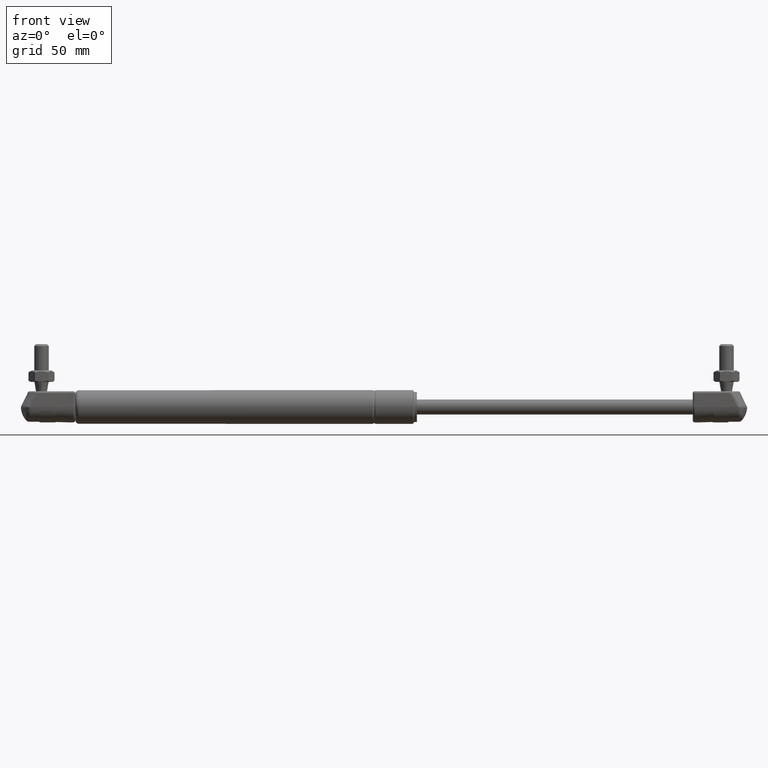
[diagram: clean part render]
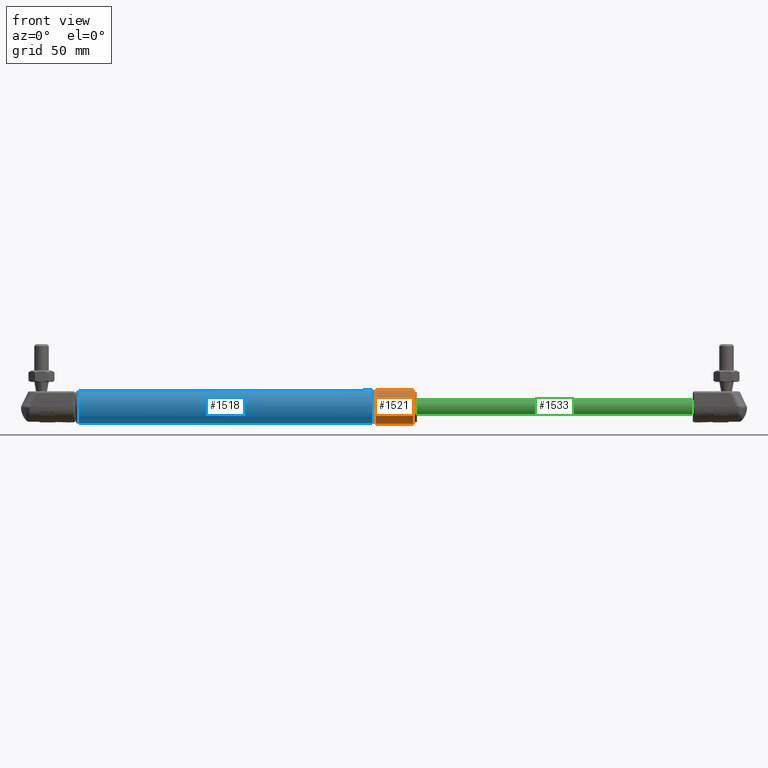
[diagram: same view with three faces highlighted in distinct colors, each labeled with its STEP entity id]
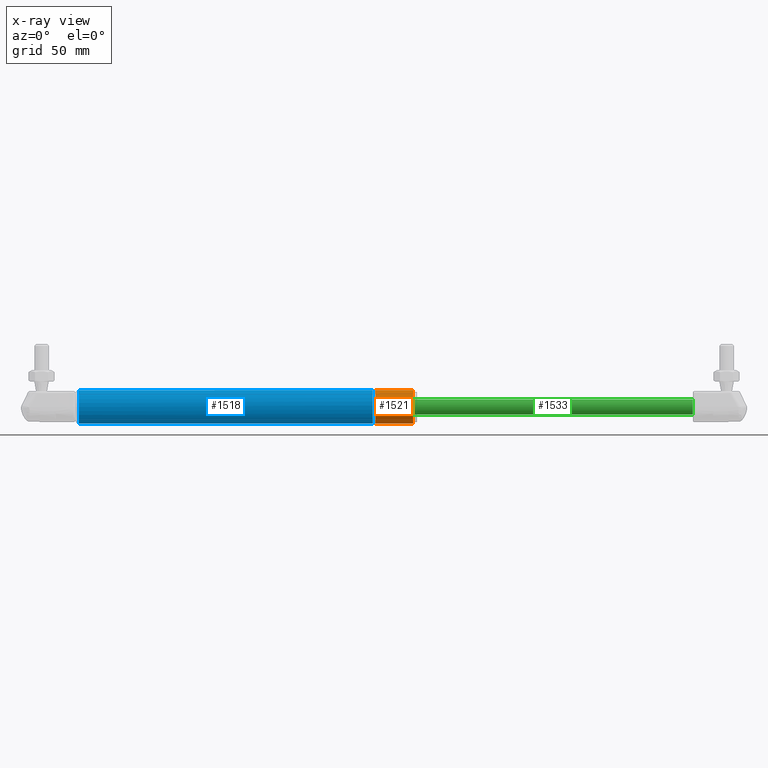
[diagram: x-ray of the same camera — body ghosted, the three highlighted faces saturated]
A machine part, front view with three faces highlighted in distinct colors.
The next image is the same camera in x-ray (body ghosted, the three faces saturated) — at least one of them is partly hidden behind the body in this view.
Their STEP definitions:

[orange] entity #1521 — the highlighted cylindrical surface (bore or boss wall) has radius 9 mm, axis along (1, -0, 0).
#344=CYLINDRICAL_SURFACE('',#1642,9.);
#368=FACE_BOUND('',#516,.T.);
#403=FACE_OUTER_BOUND('',#515,.T.);
#515=EDGE_LOOP('',(#1093));
#516=EDGE_LOOP('',(#1094));
#644=CIRCLE('',#1629,9.);
#648=CIRCLE('',#1635,9.);
#716=VERTEX_POINT('',#2185);
#720=VERTEX_POINT('',#2195);
#866=EDGE_CURVE('',#716,#716,#644,.T.);
#870=EDGE_CURVE('',#720,#720,#648,.T.);
#1093=ORIENTED_EDGE('',*,*,#870,.T.);
#1094=ORIENTED_EDGE('',*,*,#866,.T.);
#1521=ADVANCED_FACE('',(#403,#368),#344,.T.);
#1629=AXIS2_PLACEMENT_3D('',#2186,#1799,#1800);
#1635=AXIS2_PLACEMENT_3D('',#2196,#1811,#1812);
#1642=AXIS2_PLACEMENT_3D('',#2206,#1825,#1826);
#1799=DIRECTION('center_axis',(-1.,0.,0.));
#1800=DIRECTION('ref_axis',(0.,1.,0.));
#1811=DIRECTION('center_axis',(1.,0.,0.));
#1812=DIRECTION('ref_axis',(0.,1.,0.));
#1825=DIRECTION('center_axis',(1.,-2.16720028906871E-32,0.));
#1826=DIRECTION('ref_axis',(0.,1.,0.));
#2185=CARTESIAN_POINT('',(180.,0.,9.));
#2186=CARTESIAN_POINT('Origin',(180.,-3.90096052032369E-30,0.));
#2195=CARTESIAN_POINT('',(160.,0.,9.));
#2196=CARTESIAN_POINT('Origin',(160.,-3.46752046250994E-30,0.));
#2206=CARTESIAN_POINT('Origin',(91.,-1.97215226305253E-30,0.));

[blue] entity #1518 — the highlighted cylindrical surface (bore or boss wall) has radius 9 mm, axis along (1, -0, 0).
#343=CYLINDRICAL_SURFACE('',#1636,9.);
#365=FACE_BOUND('',#510,.T.);
#400=FACE_OUTER_BOUND('',#509,.T.);
#509=EDGE_LOOP('',(#1087));
#510=EDGE_LOOP('',(#1088));
#647=CIRCLE('',#1634,9.);
#649=CIRCLE('',#1637,9.);
#719=VERTEX_POINT('',#2193);
#721=VERTEX_POINT('',#2198);
#869=EDGE_CURVE('',#719,#719,#647,.T.);
#871=EDGE_CURVE('',#721,#721,#649,.T.);
#1087=ORIENTED_EDGE('',*,*,#871,.F.);
#1088=ORIENTED_EDGE('',*,*,#869,.T.);
#1518=ADVANCED_FACE('',(#400,#365),#343,.T.);
#1634=AXIS2_PLACEMENT_3D('',#2194,#1809,#1810);
#1636=AXIS2_PLACEMENT_3D('',#2197,#1813,#1814);
#1637=AXIS2_PLACEMENT_3D('',#2199,#1815,#1816);
#1809=DIRECTION('center_axis',(-1.,0.,0.));
#1810=DIRECTION('ref_axis',(0.,1.,0.));
#1813=DIRECTION('center_axis',(1.,-2.16720028906871E-32,0.));
#1814=DIRECTION('ref_axis',(0.,1.,0.));
#1815=DIRECTION('center_axis',(-1.,2.16720028906871E-32,0.));
#1816=DIRECTION('ref_axis',(0.,-1.,1.83697019872103E-16));
#2193=CARTESIAN_POINT('',(158.5,0.,8.99999999999999));
#2194=CARTESIAN_POINT('Origin',(158.5,-3.43501245817391E-30,0.));
#2197=CARTESIAN_POINT('Origin',(91.,-1.97215226305253E-30,0.));
#2198=CARTESIAN_POINT('',(1.99999999999999,9.,-2.75545529808154E-15));
#2199=CARTESIAN_POINT('Origin',(1.99999999999999,-4.33440057813741E-32,
0.));

[green] entity #1533 — the highlighted cylindrical surface (bore or boss wall) has radius 4 mm, axis along (1, -0, -0).
#349=CYLINDRICAL_SURFACE('',#1665,4.);
#377=FACE_BOUND('',#537,.T.);
#415=FACE_OUTER_BOUND('',#536,.T.);
#536=EDGE_LOOP('',(#1114));
#537=EDGE_LOOP('',(#1115));
#658=CIRCLE('',#1658,4.);
#660=CIRCLE('',#1663,4.);
#730=VERTEX_POINT('',#2228);
#732=VERTEX_POINT('',#2235);
#880=EDGE_CURVE('',#730,#730,#658,.T.);
#882=EDGE_CURVE('',#732,#732,#660,.T.);
#1114=ORIENTED_EDGE('',*,*,#880,.T.);
#1115=ORIENTED_EDGE('',*,*,#882,.F.);
#1533=ADVANCED_FACE('',(#415,#377),#349,.T.);
#1658=AXIS2_PLACEMENT_3D('',#2229,#1857,#1858);
#1663=AXIS2_PLACEMENT_3D('',#2236,#1867,#1868);
#1665=AXIS2_PLACEMENT_3D('',#2239,#1871,#1872);
#1857=DIRECTION('center_axis',(1.,0.,0.));
#1858=DIRECTION('ref_axis',(0.,0.,-1.));
#1867=DIRECTION('center_axis',(1.,0.,0.));
#1868=DIRECTION('ref_axis',(0.,0.,-1.));
#1871=DIRECTION('center_axis',(1.,0.,0.));
#1872=DIRECTION('ref_axis',(0.,1.,0.));
#2228=CARTESIAN_POINT('',(0.,4.,0.));
#2229=CARTESIAN_POINT('Origin',(0.,0.,0.));
#2235=CARTESIAN_POINT('',(157.,4.,0.));
#2236=CARTESIAN_POINT('Origin',(157.,0.,0.));
#2239=CARTESIAN_POINT('Origin',(78.5,0.,0.));